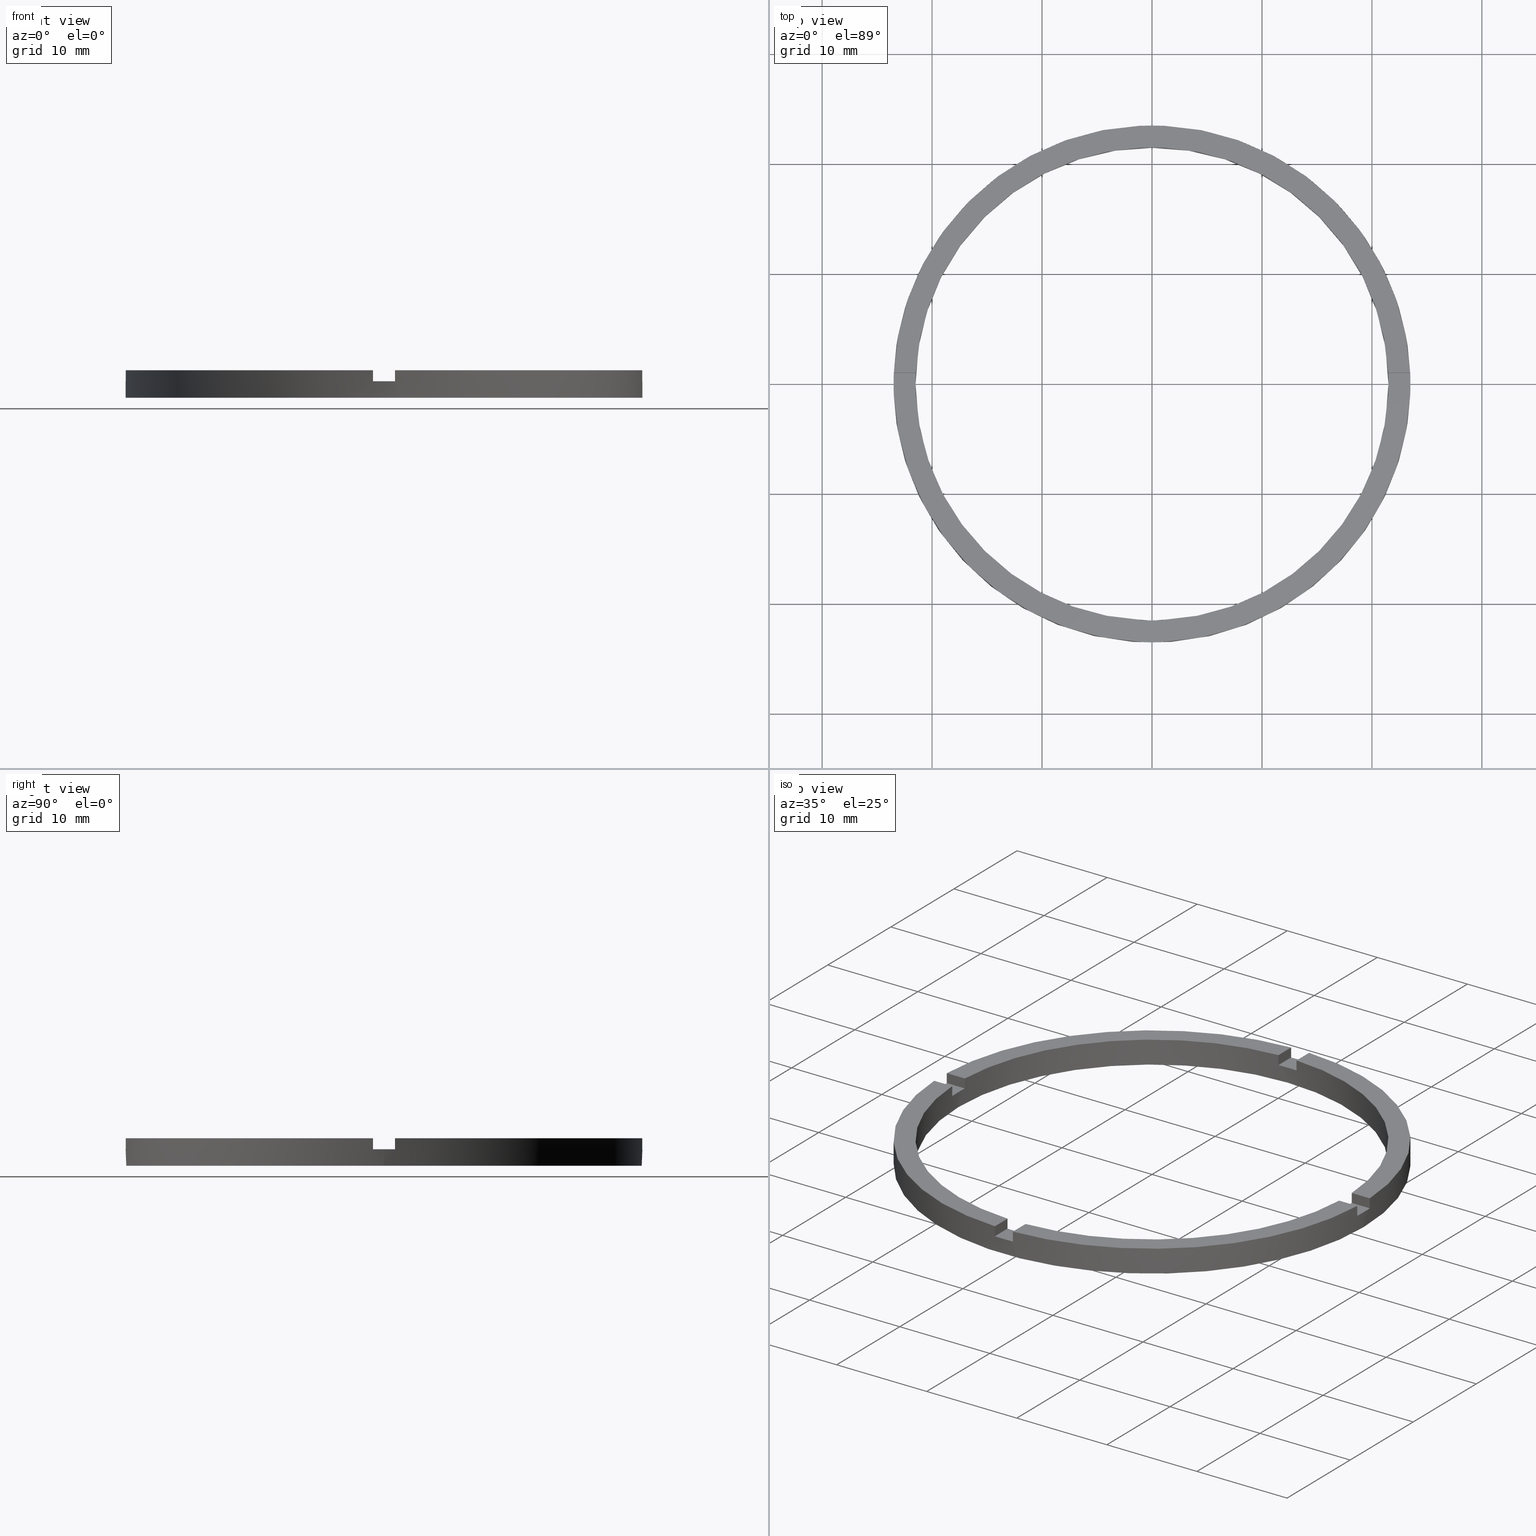
[diagram: canonical four-view strip — front | top / right | iso, engineering-drawing reading convention]
A machine part, canonical four-view strip (front | top / right | iso — engineering-drawing reading convention). The complete STEP part file that produces these views, byte-faithful:
ISO-10303-21;
HEADER;
FILE_DESCRIPTION (( 'STEP AP203' ),
    '1' );
FILE_NAME ('514098.step',
    '2024-12-26T02:37:19',
    ( 'MSI' ),
    ( '' ),
    'SwSTEP 2.0',
    'SolidWorks 2020',
    '' );
FILE_SCHEMA (( 'CONFIG_CONTROL_DESIGN' ));
ENDSEC;

DATA;
#1 = DIRECTION ( 'NONE',  ( 0.000000000000000000, 0.000000000000000000, 1.000000000000000000 ) ) ;
#2 = DIRECTION ( 'NONE',  ( -1.301042606982605074E-16, 1.000000000000000000, -0.000000000000000000 ) ) ;
#3 = DIRECTION ( 'NONE',  ( 1.000000000000000000, 0.000000000000000000, 0.000000000000000000 ) ) ;
#4 = CARTESIAN_POINT ( 'NONE',  ( 13.49999999999999822, -1.000000000000158318, 1.500000000000000000 ) ) ;
#5 = EDGE_CURVE ( 'NONE', #368, #486, #684, .T. ) ;
#6 = ORIENTED_EDGE ( 'NONE', *, *, #39, .F. ) ;
#7 = AXIS2_PLACEMENT_3D ( 'NONE', #4, #561, #611 ) ;
#8 = UNCERTAINTY_MEASURE_WITH_UNIT (LENGTH_MEASURE( 1.000000000000000082E-05 ), #657, 'distance_accuracy_value', 'NONE');
#9 = ORIENTED_EDGE ( 'NONE', *, *, #75, .F. ) ;
#10 = DIRECTION ( 'NONE',  ( 0.000000000000000000, 1.000000000000000000, 0.000000000000000000 ) ) ;
#11 = AXIS2_PLACEMENT_3D ( 'NONE', #760, #40, #524 ) ;
#12 = ORIENTED_EDGE ( 'NONE', *, *, #695, .F. ) ;
#13 = EDGE_CURVE ( 'NONE', #580, #300, #679, .T. ) ;
#14 = VERTEX_POINT ( 'NONE', #103 ) ;
#15 = ORIENTED_EDGE ( 'NONE', *, *, #314, .T. ) ;
#16 = PLANE ( 'NONE',  #222 ) ;
#17 = CC_DESIGN_PERSON_AND_ORGANIZATION_ASSIGNMENT ( #490, #618, ( #518 ) ) ;
#18 = EDGE_LOOP ( 'NONE', ( #203, #190, #292, #118 ) ) ;
#19 = ORIENTED_EDGE ( 'NONE', *, *, #650, .T. ) ;
#20 = ORIENTED_EDGE ( 'NONE', *, *, #438, .T. ) ;
#21 = DIRECTION ( 'NONE',  ( 0.000000000000000000, 0.000000000000000000, 1.000000000000000000 ) ) ;
#22 = DIRECTION ( 'NONE',  ( 0.000000000000000000, 0.000000000000000000, 1.000000000000000000 ) ) ;
#23 = EDGE_CURVE ( 'NONE', #247, #522, #391, .T. ) ;
#24 = VERTEX_POINT ( 'NONE', #392 ) ;
#25 = PLANE ( 'NONE',  #631 ) ;
#26 = ORIENTED_EDGE ( 'NONE', *, *, #13, .T. ) ;
#27 = AXIS2_PLACEMENT_3D ( 'NONE', #266, #626, #384 ) ;
#28 = CARTESIAN_POINT ( 'NONE',  ( 21.47673159491453632, 0.9999999999998419042, 2.500000000000000000 ) ) ;
#29 = CARTESIAN_POINT ( 'NONE',  ( -1.000000000000160982, -23.47871376374778407, 2.500000000000000000 ) ) ;
#30 = DIRECTION ( 'NONE',  ( 1.000000000000000000, 0.000000000000000000, 0.000000000000000000 ) ) ;
#31 = DIRECTION ( 'NONE',  ( 0.000000000000000000, 0.000000000000000000, 1.000000000000000000 ) ) ;
#32 = AXIS2_PLACEMENT_3D ( 'NONE', #646, #62, #603 ) ;
#33 = CARTESIAN_POINT ( 'NONE',  ( 23.47871376374779828, 0.9999999999998421263, 2.500000000000000000 ) ) ;
#34 = ORIENTED_EDGE ( 'NONE', *, *, #770, .T. ) ;
#35 = CARTESIAN_POINT ( 'NONE',  ( 0.000000000000000000, 0.000000000000000000, 1.500000000000000000 ) ) ;
#36 = DIRECTION ( 'NONE',  ( 1.000000000000000000, 0.000000000000000000, 0.000000000000000000 ) ) ;
#37 = ORIENTED_EDGE ( 'NONE', *, *, #550, .F. ) ;
#38 = ADVANCED_FACE ( 'NONE', ( #136 ), #605, .T. ) ;
#39 = EDGE_CURVE ( 'NONE', #57, #223, #169, .T. ) ;
#40 = DIRECTION ( 'NONE',  ( 0.000000000000000000, 0.000000000000000000, 1.000000000000000000 ) ) ;
#41 = CARTESIAN_POINT ( 'NONE',  ( 0.000000000000000000, 0.000000000000000000, 0.000000000000000000 ) ) ;
#42 = EDGE_CURVE ( 'NONE', #681, #522, #423, .T. ) ;
#43 = EDGE_CURVE ( 'NONE', #24, #531, #429, .T. ) ;
#44 = ORIENTED_EDGE ( 'NONE', *, *, #539, .F. ) ;
#45 = VERTEX_POINT ( 'NONE', #645 ) ;
#46 = EDGE_CURVE ( 'NONE', #522, #53, #698, .T. ) ;
#47 = ORIENTED_EDGE ( 'NONE', *, *, #92, .T. ) ;
#48 = ORIENTED_EDGE ( 'NONE', *, *, #70, .T. ) ;
#49 = VERTEX_POINT ( 'NONE', #99 ) ;
#50 = APPROVAL ( #412, 'δָ��' ) ;
#51 = EDGE_LOOP ( 'NONE', ( #156, #20, #693, #133, #273, #676, #160, #129, #424, #397, #413, #426 ) ) ;
#52 = CC_DESIGN_PERSON_AND_ORGANIZATION_ASSIGNMENT ( #758, #264, ( #594 ) ) ;
#53 = VERTEX_POINT ( 'NONE', #298 ) ;
#54 = DIRECTION ( 'NONE',  ( 0.000000000000000000, 0.000000000000000000, 1.000000000000000000 ) ) ;
#55 = CARTESIAN_POINT ( 'NONE',  ( -1.000000000000025535, 23.47871376374778762, 1.500000000000000000 ) ) ;
#56 = ORIENTED_EDGE ( 'NONE', *, *, #281, .F. ) ;
#57 = VERTEX_POINT ( 'NONE', #91 ) ;
#58 = AXIS2_PLACEMENT_3D ( 'NONE', #716, #376, #3 ) ;
#59 = VERTEX_POINT ( 'NONE', #309 ) ;
#60 = PLANE ( 'NONE',  #289 ) ;
#61 = CARTESIAN_POINT ( 'NONE',  ( 0.000000000000000000, 0.000000000000000000, 2.500000000000000000 ) ) ;
#62 = DIRECTION ( 'NONE',  ( 0.000000000000000000, 0.000000000000000000, 1.000000000000000000 ) ) ;
#63 = LINE ( 'NONE', #71, #593 ) ;
#64 = CARTESIAN_POINT ( 'NONE',  ( 0.9999999999999740208, 13.50000000000000355, 2.500000000000000000 ) ) ;
#65 = DIRECTION ( 'NONE',  ( 1.000000000000000000, 0.000000000000000000, -0.000000000000000000 ) ) ;
#66 = PRODUCT_DEFINITION_SHAPE ( 'NONE', 'NONE',  #341 ) ;
#67 = ORIENTED_EDGE ( 'NONE', *, *, #5, .T. ) ;
#68 = CARTESIAN_POINT ( 'NONE',  ( -23.47871376374779473, 0.9999999999999744649, 2.500000000000000000 ) ) ;
#69 = DIRECTION ( 'NONE',  ( 0.000000000000000000, 0.000000000000000000, 1.000000000000000000 ) ) ;
#70 = EDGE_CURVE ( 'NONE', #127, #218, #431, .T. ) ;
#71 = CARTESIAN_POINT ( 'NONE',  ( -1.000000000000162315, -13.50000000000018296, 2.500000000000000000 ) ) ;
#72 = ORIENTED_EDGE ( 'NONE', *, *, #337, .F. ) ;
#73 = DIRECTION ( 'NONE',  ( 1.000000000000000000, 0.000000000000000000, 0.000000000000000000 ) ) ;
#74 = EDGE_CURVE ( 'NONE', #560, #223, #701, .T. ) ;
#75 = EDGE_CURVE ( 'NONE', #681, #59, #176, .T. ) ;
#76 = CARTESIAN_POINT ( 'NONE',  ( -21.47673159491452921, 0.9999999999999749090, 2.500000000000000000 ) ) ;
#77 = CARTESIAN_POINT ( 'NONE',  ( -21.47673159491452566, -1.000000000000025091, 2.500000000000000000 ) ) ;
#78 = EDGE_CURVE ( 'NONE', #247, #408, #434, .T. ) ;
#79 = CARTESIAN_POINT ( 'NONE',  ( -1.000000000000025535, 23.47871376374778762, 2.500000000000000000 ) ) ;
#80 = CARTESIAN_POINT ( 'NONE',  ( 0.9999999999998386846, -23.47871376374779473, 2.500000000000000000 ) ) ;
#81 = AXIS2_PLACEMENT_3D ( 'NONE', #382, #54, #601 ) ;
#82 = CARTESIAN_POINT ( 'NONE',  ( 0.9999999999998389066, -21.47673159491453632, 2.500000000000000000 ) ) ;
#83 = EDGE_LOOP ( 'NONE', ( #171, #394 ) ) ;
#84 = CARTESIAN_POINT ( 'NONE',  ( 21.47673159491453632, 0.9999999999998419042, 1.500000000000000000 ) ) ;
#85 = VERTEX_POINT ( 'NONE', #602 ) ;
#86 = DIRECTION ( 'NONE',  ( 1.000000000000000000, 0.000000000000000000, 0.000000000000000000 ) ) ;
#87 = ADVANCED_FACE ( 'NONE', ( #667 ), #240, .F. ) ;
#88 = PRODUCT ( '514098', '514098', '', ( #248 ) ) ;
#89 = CARTESIAN_POINT ( 'NONE',  ( -1.000000000000160760, -21.47673159491451500, 2.500000000000000000 ) ) ;
#90 = EDGE_CURVE ( 'NONE', #535, #687, #671, .T. ) ;
#91 = CARTESIAN_POINT ( 'NONE',  ( -23.50000000000000355, 0.000000000000000000, 0.000000000000000000 ) ) ;
#92 = EDGE_CURVE ( 'NONE', #234, #580, #139, .T. ) ;
#93 = AXIS2_PLACEMENT_3D ( 'NONE', #250, #360, #36 ) ;
#94 = EDGE_CURVE ( 'NONE', #45, #548, #402, .T. ) ;
#95 = CARTESIAN_POINT ( 'NONE',  ( 23.50000000000000355, 2.877919977996280715E-15, 2.500000000000000000 ) ) ;
#96 = DIRECTION ( 'NONE',  ( 1.000000000000000000, 0.000000000000000000, 0.000000000000000000 ) ) ;
#97 = APPROVAL ( #473, 'δָ��' ) ;
#98 = CARTESIAN_POINT ( 'NONE',  ( 0.9999999999998391287, -23.47871376374779828, 2.500000000000000000 ) ) ;
#99 = CARTESIAN_POINT ( 'NONE',  ( 0.9999999999998384625, -21.47673159491453276, 2.500000000000000000 ) ) ;
#100 = DIRECTION ( 'NONE',  ( 1.000000000000000000, 0.000000000000000000, -0.000000000000000000 ) ) ;
#101 = DIRECTION ( 'NONE',  ( 1.000000000000000000, 4.336808689942017120E-17, 0.000000000000000000 ) ) ;
#102 =( NAMED_UNIT ( * ) PLANE_ANGLE_UNIT ( ) SI_UNIT ( $, .RADIAN. ) );
#103 = CARTESIAN_POINT ( 'NONE',  ( 21.47673159491452211, -1.000000000000158096, 2.500000000000000000 ) ) ;
#104 = DIRECTION ( 'NONE',  ( -4.336808689942017120E-17, 1.000000000000000000, 0.000000000000000000 ) ) ;
#105 = DIRECTION ( 'NONE',  ( 0.000000000000000000, 0.000000000000000000, 1.000000000000000000 ) ) ;
#106 = ORIENTED_EDGE ( 'NONE', *, *, #582, .F. ) ;
#107 = ORIENTED_EDGE ( 'NONE', *, *, #114, .T. ) ;
#108 = CARTESIAN_POINT ( 'NONE',  ( 13.49999999999999822, -1.000000000000158318, 1.500000000000000000 ) ) ;
#109 = DIRECTION ( 'NONE',  ( 1.000000000000000000, 0.000000000000000000, -0.000000000000000000 ) ) ;
#110 = DIRECTION ( 'NONE',  ( 0.000000000000000000, 0.000000000000000000, 1.000000000000000000 ) ) ;
#111 = CARTESIAN_POINT ( 'NONE',  ( -23.50000000000000355, 0.000000000000000000, 1.500000000000000000 ) ) ;
#112 = DIRECTION ( 'NONE',  ( 0.000000000000000000, 0.000000000000000000, 1.000000000000000000 ) ) ;
#113 = EDGE_CURVE ( 'NONE', #234, #537, #142, .T. ) ;
#114 = EDGE_CURVE ( 'NONE', #85, #408, #439, .T. ) ;
#115 = ORIENTED_EDGE ( 'NONE', *, *, #614, .T. ) ;
#116 = CARTESIAN_POINT ( 'NONE',  ( -13.50000000000018829, -1.000000000000023981, 1.500000000000000000 ) ) ;
#117 = PLANE ( 'NONE',  #400 ) ;
#118 = ORIENTED_EDGE ( 'NONE', *, *, #703, .F. ) ;
#119 = ADVANCED_FACE ( 'NONE', ( #465 ), #294, .T. ) ;
#120 = DIRECTION ( 'NONE',  ( -0.000000000000000000, -0.000000000000000000, -1.000000000000000000 ) ) ;
#121 = AXIS2_PLACEMENT_3D ( 'NONE', #417, #104, #577 ) ;
#122 =( GEOMETRIC_REPRESENTATION_CONTEXT ( 3 ) GLOBAL_UNCERTAINTY_ASSIGNED_CONTEXT ( ( #8 ) ) GLOBAL_UNIT_ASSIGNED_CONTEXT ( ( #657, #102, #166 ) ) REPRESENTATION_CONTEXT ( 'NONE', 'WORKASPACE' ) );
#123 = EDGE_LOOP ( 'NONE', ( #457, #48, #284, #44 ) ) ;
#124 = ORIENTED_EDGE ( 'NONE', *, *, #74, .F. ) ;
#125 = DIRECTION ( 'NONE',  ( 1.000000000000000000, 0.000000000000000000, -0.000000000000000000 ) ) ;
#126 = ORIENTED_EDGE ( 'NONE', *, *, #653, .F. ) ;
#127 = VERTEX_POINT ( 'NONE', #334 ) ;
#128 = ADVANCED_BREP_SHAPE_REPRESENTATION ( '514098', ( #556, #258 ), #122 ) ;
#129 = ORIENTED_EDGE ( 'NONE', *, *, #70, .F. ) ;
#130 = CARTESIAN_POINT ( 'NONE',  ( 0.000000000000000000, 0.000000000000000000, 2.500000000000000000 ) ) ;
#131 = CARTESIAN_POINT ( 'NONE',  ( -1.000000000000160538, -23.47871376374778052, 2.500000000000000000 ) ) ;
#132 = ADVANCED_FACE ( 'NONE', ( #472 ), #201, .F. ) ;
#133 = ORIENTED_EDGE ( 'NONE', *, *, #165, .F. ) ;
#134 = ORIENTED_EDGE ( 'NONE', *, *, #46, .F. ) ;
#135 = CARTESIAN_POINT ( 'NONE',  ( 21.47673159491452211, -1.000000000000158096, 2.500000000000000000 ) ) ;
#136 = FACE_OUTER_BOUND ( 'NONE', #144, .T. ) ;
#137 = CARTESIAN_POINT ( 'NONE',  ( 23.50000000000000355, 2.877919977996280715E-15, 0.000000000000000000 ) ) ;
#138 = ORIENTED_EDGE ( 'NONE', *, *, #438, .F. ) ;
#139 = LINE ( 'NONE', #708, #672 ) ;
#140 = VECTOR ( 'NONE', #2, 1000.000000000000000 ) ;
#141 = ORIENTED_EDGE ( 'NONE', *, *, #582, .T. ) ;
#142 = LINE ( 'NONE', #613, #409 ) ;
#143 = PLANE ( 'NONE',  #422 ) ;
#144 = EDGE_LOOP ( 'NONE', ( #12, #403, #658, #145 ) ) ;
#145 = ORIENTED_EDGE ( 'NONE', *, *, #204, .T. ) ;
#146 = ORIENTED_EDGE ( 'NONE', *, *, #606, .F. ) ;
#147 = EDGE_CURVE ( 'NONE', #705, #486, #189, .T. ) ;
#148 = ORIENTED_EDGE ( 'NONE', *, *, #74, .T. ) ;
#149 = DIRECTION ( 'NONE',  ( 1.000000000000000000, 0.000000000000000000, -0.000000000000000000 ) ) ;
#150 = ORIENTED_EDGE ( 'NONE', *, *, #23, .T. ) ;
#151 = ORIENTED_EDGE ( 'NONE', *, *, #395, .F. ) ;
#152 = AXIS2_PLACEMENT_3D ( 'NONE', #347, #654, #648 ) ;
#153 = ORIENTED_EDGE ( 'NONE', *, *, #627, .F. ) ;
#154 = ORIENTED_EDGE ( 'NONE', *, *, #75, .T. ) ;
#155 = VECTOR ( 'NONE', #551, 1000.000000000000000 ) ;
#156 = ORIENTED_EDGE ( 'NONE', *, *, #281, .T. ) ;
#157 = ORIENTED_EDGE ( 'NONE', *, *, #197, .T. ) ;
#158 = DIRECTION ( 'NONE',  ( 1.000000000000000000, 0.000000000000000000, 0.000000000000000000 ) ) ;
#159 = VERTEX_POINT ( 'NONE', #443 ) ;
#160 = ORIENTED_EDGE ( 'NONE', *, *, #335, .T. ) ;
#161 = CC_DESIGN_APPROVAL ( #97, ( #518 ) ) ;
#162 = ORIENTED_EDGE ( 'NONE', *, *, #440, .T. ) ;
#163 = DIRECTION ( 'NONE',  ( -1.000000000000000000, -1.734723475976806848E-16, 0.000000000000000000 ) ) ;
#164 = ORIENTED_EDGE ( 'NONE', *, *, #703, .T. ) ;
#165 = EDGE_CURVE ( 'NONE', #686, #533, #205, .T. ) ;
#166 =( NAMED_UNIT ( * ) SI_UNIT ( $, .STERADIAN. ) SOLID_ANGLE_UNIT ( ) );
#167 = VECTOR ( 'NONE', #515, 1000.000000000000000 ) ;
#168 = CARTESIAN_POINT ( 'NONE',  ( 0.000000000000000000, 0.000000000000000000, 0.000000000000000000 ) ) ;
#169 = CIRCLE ( 'NONE', #512, 23.50000000000000355 ) ;
#170 = AXIS2_PLACEMENT_3D ( 'NONE', #116, #393, #663 ) ;
#171 = ORIENTED_EDGE ( 'NONE', *, *, #342, .T. ) ;
#172 = VECTOR ( 'NONE', #10, 1000.000000000000000 ) ;
#173 = APPLICATION_CONTEXT ( 'configuration controlled 3d designs of mechanical parts and assemblies' ) ;
#174 = VECTOR ( 'NONE', #568, 1000.000000000000000 ) ;
#175 = CARTESIAN_POINT ( 'NONE',  ( 0.000000000000000000, 0.000000000000000000, 1.500000000000000000 ) ) ;
#176 = CIRCLE ( 'NONE', #152, 21.50000000000000000 ) ;
#177 = LINE ( 'NONE', #98, #739 ) ;
#178 = LINE ( 'NONE', #527, #436 ) ;
#179 = FACE_OUTER_BOUND ( 'NONE', #767, .T. ) ;
#180 = CARTESIAN_POINT ( 'NONE',  ( 0.000000000000000000, 0.000000000000000000, 0.000000000000000000 ) ) ;
#181 = CIRCLE ( 'NONE', #256, 21.50000000000000000 ) ;
#182 = FACE_OUTER_BOUND ( 'NONE', #755, .T. ) ;
#183 = LINE ( 'NONE', #628, #445 ) ;
#184 = DIRECTION ( 'NONE',  ( 1.000000000000000000, 1.734723475976806848E-16, -0.000000000000000000 ) ) ;
#185 = CIRCLE ( 'NONE', #523, 23.50000000000000355 ) ;
#186 = DIRECTION ( 'NONE',  ( -1.301042606982605074E-16, 1.000000000000000000, -0.000000000000000000 ) ) ;
#187 = LINE ( 'NONE', #545, #446 ) ;
#188 = DIRECTION ( 'NONE',  ( 1.000000000000000000, 0.000000000000000000, 0.000000000000000000 ) ) ;
#189 = LINE ( 'NONE', #480, #479 ) ;
#190 = ORIENTED_EDGE ( 'NONE', *, *, #78, .T. ) ;
#191 = LINE ( 'NONE', #344, #750 ) ;
#192 = APPROVAL_DATE_TIME ( #505, #50 ) ;
#193 = CIRCLE ( 'NONE', #617, 21.50000000000000000 ) ;
#194 = COORDINATED_UNIVERSAL_TIME_OFFSET ( 8, 0, .AHEAD. ) ;
#195 = CARTESIAN_POINT ( 'NONE',  ( 0.9999999999998377964, -13.50000000000018296, 2.500000000000000000 ) ) ;
#196 = LINE ( 'NONE', #316, #709 ) ;
#197 = EDGE_CURVE ( 'NONE', #555, #24, #177, .T. ) ;
#198 = APPROVAL_DATE_TIME ( #236, #97 ) ;
#199 = CIRCLE ( 'NONE', #93, 21.50000000000000000 ) ;
#200 = LOCAL_TIME ( 10, 37, 19.00000000000000000, #471 ) ;
#201 = CYLINDRICAL_SURFACE ( 'NONE', #245, 21.50000000000000000 ) ;
#202 = LINE ( 'NONE', #230, #744 ) ;
#203 = ORIENTED_EDGE ( 'NONE', *, *, #363, .T. ) ;
#204 = EDGE_CURVE ( 'NONE', #234, #416, #442, .T. ) ;
#205 = LINE ( 'NONE', #783, #728 ) ;
#206 = CIRCLE ( 'NONE', #608, 21.50000000000000000 ) ;
#207 = CARTESIAN_POINT ( 'NONE',  ( 0.000000000000000000, 0.000000000000000000, 2.500000000000000000 ) ) ;
#208 = LOCAL_TIME ( 10, 37, 19.00000000000000000, #745 ) ;
#209 = CIRCLE ( 'NONE', #718, 21.50000000000000000 ) ;
#210 = FACE_OUTER_BOUND ( 'NONE', #571, .T. ) ;
#211 = DIRECTION ( 'NONE',  ( 1.000000000000000000, -0.000000000000000000, 0.000000000000000000 ) ) ;
#212 = VECTOR ( 'NONE', #322, 1000.000000000000000 ) ;
#213 = CC_DESIGN_PERSON_AND_ORGANIZATION_ASSIGNMENT ( #217, #615, ( #341 ) ) ;
#214 = FACE_OUTER_BOUND ( 'NONE', #293, .T. ) ;
#215 = VERTEX_POINT ( 'NONE', #285 ) ;
#216 = CIRCLE ( 'NONE', #351, 21.50000000000000000 ) ;
#217 = PERSON_AND_ORGANIZATION ( #336, #232 ) ;
#218 = VERTEX_POINT ( 'NONE', #89 ) ;
#219 = CIRCLE ( 'NONE', #641, 23.50000000000000355 ) ;
#220 = APPROVAL_DATE_TIME ( #749, #261 ) ;
#221 = LINE ( 'NONE', #353, #774 ) ;
#222 = AXIS2_PLACEMENT_3D ( 'NONE', #241, #607, #69 ) ;
#223 = VERTEX_POINT ( 'NONE', #137 ) ;
#224 = VECTOR ( 'NONE', #186, 1000.000000000000000 ) ;
#225 = CARTESIAN_POINT ( 'NONE',  ( 0.9999999999999735767, 21.47673159491452566, 2.500000000000000000 ) ) ;
#226 = ADVANCED_FACE ( 'NONE', ( #179 ), #231, .T. ) ;
#227 = ORIENTED_EDGE ( 'NONE', *, *, #113, .F. ) ;
#228 = LINE ( 'NONE', #29, #773 ) ;
#229 = ORIENTED_EDGE ( 'NONE', *, *, #165, .T. ) ;
#230 = CARTESIAN_POINT ( 'NONE',  ( 13.49999999999999822, 0.9999999999998416822, 2.500000000000000000 ) ) ;
#231 = PLANE ( 'NONE',  #32 ) ;
#232 = ORGANIZATION ( 'δָ��', 'δָ��', '' ) ;
#233 = FACE_OUTER_BOUND ( 'NONE', #18, .T. ) ;
#234 = VERTEX_POINT ( 'NONE', #288 ) ;
#235 = FACE_BOUND ( 'NONE', #83, .T. ) ;
#236 = DATE_AND_TIME ( #455, #769 ) ;
#237 = LINE ( 'NONE', #362, #765 ) ;
#238 = PERSON_AND_ORGANIZATION ( #336, #232 ) ;
#239 = LINE ( 'NONE', #195, #224 ) ;
#240 = PLANE ( 'NONE',  #7 ) ;
#241 = CARTESIAN_POINT ( 'NONE',  ( -1.000000000000025979, 13.50000000000000355, 1.500000000000000000 ) ) ;
#242 = DIRECTION ( 'NONE',  ( 1.000000000000000000, 0.000000000000000000, 0.000000000000000000 ) ) ;
#243 = PLANE ( 'NONE',  #317 ) ;
#244 = DIRECTION ( 'NONE',  ( -1.000000000000000000, 0.000000000000000000, 0.000000000000000000 ) ) ;
#245 = AXIS2_PLACEMENT_3D ( 'NONE', #449, #461, #549 ) ;
#246 = DIRECTION ( 'NONE',  ( 1.000000000000000000, 1.734723475976806848E-16, -0.000000000000000000 ) ) ;
#247 = VERTEX_POINT ( 'NONE', #704 ) ;
#248 = MECHANICAL_CONTEXT ( 'NONE', #173, 'mechanical' ) ;
#249 = DIRECTION ( 'NONE',  ( -0.000000000000000000, -0.000000000000000000, -1.000000000000000000 ) ) ;
#250 = CARTESIAN_POINT ( 'NONE',  ( 0.000000000000000000, 0.000000000000000000, 2.500000000000000000 ) ) ;
#251 = ORIENTED_EDGE ( 'NONE', *, *, #494, .T. ) ;
#252 = EDGE_CURVE ( 'NONE', #705, #548, #444, .T. ) ;
#253 = PERSON_AND_ORGANIZATION_ROLE ( 'creator' ) ;
#254 = CARTESIAN_POINT ( 'NONE',  ( 0.000000000000000000, 0.000000000000000000, 2.500000000000000000 ) ) ;
#255 = AXIS2_PLACEMENT_3D ( 'NONE', #619, #576, #30 ) ;
#256 = AXIS2_PLACEMENT_3D ( 'NONE', #41, #418, #642 ) ;
#257 = ORIENTED_EDGE ( 'NONE', *, *, #630, .T. ) ;
#258 = AXIS2_PLACEMENT_3D ( 'NONE', #495, #570, #73 ) ;
#259 = CARTESIAN_POINT ( 'NONE',  ( 0.000000000000000000, 0.000000000000000000, 2.500000000000000000 ) ) ;
#260 = CARTESIAN_POINT ( 'NONE',  ( -1.000000000000160538, -23.47871376374778052, 1.500000000000000000 ) ) ;
#261 = APPROVAL ( #738, 'δָ��' ) ;
#262 = ORIENTED_EDGE ( 'NONE', *, *, #606, .T. ) ;
#263 = ORIENTED_EDGE ( 'NONE', *, *, #147, .F. ) ;
#264 = PERSON_AND_ORGANIZATION_ROLE ( 'design_supplier' ) ;
#265 = ORIENTED_EDGE ( 'NONE', *, *, #5, .F. ) ;
#266 = CARTESIAN_POINT ( 'NONE',  ( 0.000000000000000000, 0.000000000000000000, 1.500000000000000000 ) ) ;
#267 = AXIS2_PLACEMENT_3D ( 'NONE', #458, #547, #125 ) ;
#268 = CLOSED_SHELL ( 'NONE', ( #132, #589, #226, #778, #271, #38, #534, #370, #279, #525, #519, #597, #359, #331, #635, #528, #87, #366, #433, #441, #119 ) ) ;
#269 = ORIENTED_EDGE ( 'NONE', *, *, #770, .F. ) ;
#270 = CARTESIAN_POINT ( 'NONE',  ( 0.9999999999999740208, 13.50000000000000355, 1.500000000000000000 ) ) ;
#271 = ADVANCED_FACE ( 'NONE', ( #210 ), #143, .T. ) ;
#272 = EDGE_LOOP ( 'NONE', ( #291, #559, #275, #541 ) ) ;
#273 = ORIENTED_EDGE ( 'NONE', *, *, #339, .T. ) ;
#274 = ORIENTED_EDGE ( 'NONE', *, *, #453, .T. ) ;
#275 = ORIENTED_EDGE ( 'NONE', *, *, #94, .T. ) ;
#276 = CARTESIAN_POINT ( 'NONE',  ( 0.000000000000000000, 0.000000000000000000, 1.500000000000000000 ) ) ;
#277 = EDGE_LOOP ( 'NONE', ( #6, #146 ) ) ;
#278 = DIRECTION ( 'NONE',  ( -1.000000000000000000, 0.000000000000000000, 0.000000000000000000 ) ) ;
#279 = ADVANCED_FACE ( 'NONE', ( #469 ), #742, .F. ) ;
#280 = EDGE_CURVE ( 'NONE', #625, #548, #454, .T. ) ;
#281 = EDGE_CURVE ( 'NONE', #535, #585, #467, .T. ) ;
#282 = VERTEX_POINT ( 'NONE', #311 ) ;
#283 = AXIS2_PLACEMENT_3D ( 'NONE', #733, #622, #569 ) ;
#284 = ORIENTED_EDGE ( 'NONE', *, *, #695, .T. ) ;
#285 = CARTESIAN_POINT ( 'NONE',  ( -21.47673159491452921, 0.9999999999999749090, 1.500000000000000000 ) ) ;
#286 = CARTESIAN_POINT ( 'NONE',  ( -21.50000000000000000, 0.000000000000000000, 0.000000000000000000 ) ) ;
#287 = EDGE_CURVE ( 'NONE', #705, #673, #435, .T. ) ;
#288 = CARTESIAN_POINT ( 'NONE',  ( -23.47871376374779118, -1.000000000000025535, 2.500000000000000000 ) ) ;
#289 = AXIS2_PLACEMENT_3D ( 'NONE', #180, #299, #100 ) ;
#290 = CARTESIAN_POINT ( 'NONE',  ( -1.000000000000161204, -21.47673159491451855, 2.500000000000000000 ) ) ;
#291 = ORIENTED_EDGE ( 'NONE', *, *, #324, .F. ) ;
#292 = ORIENTED_EDGE ( 'NONE', *, *, #114, .F. ) ;
#293 = EDGE_LOOP ( 'NONE', ( #72, #587, #526, #346 ) ) ;
#294 = PLANE ( 'NONE',  #751 ) ;
#295 = DIRECTION ( 'NONE',  ( 1.301042606982605074E-16, -1.000000000000000000, 0.000000000000000000 ) ) ;
#296 = AXIS2_PLACEMENT_3D ( 'NONE', #447, #702, #86 ) ;
#297 = ORIENTED_EDGE ( 'NONE', *, *, #766, .T. ) ;
#298 = CARTESIAN_POINT ( 'NONE',  ( 0.9999999999999735767, 23.47871376374779118, 2.500000000000000000 ) ) ;
#299 = DIRECTION ( 'NONE',  ( 0.000000000000000000, 0.000000000000000000, 1.000000000000000000 ) ) ;
#300 = VERTEX_POINT ( 'NONE', #387 ) ;
#301 = ORIENTED_EDGE ( 'NONE', *, *, #650, .F. ) ;
#302 = DIRECTION ( 'NONE',  ( -0.000000000000000000, -0.000000000000000000, -1.000000000000000000 ) ) ;
#303 = ORIENTED_EDGE ( 'NONE', *, *, #552, .T. ) ;
#304 = APPROVAL_ROLE ( '' ) ;
#305 = DIRECTION ( 'NONE',  ( 0.000000000000000000, 0.000000000000000000, 1.000000000000000000 ) ) ;
#306 = PLANE ( 'NONE',  #170 ) ;
#307 = ORIENTED_EDGE ( 'NONE', *, *, #656, .F. ) ;
#308 = APPROVAL_ROLE ( '' ) ;
#309 = CARTESIAN_POINT ( 'NONE',  ( -1.000000000000025535, 21.47673159491452211, 1.500000000000000000 ) ) ;
#310 = PLANE ( 'NONE',  #121 ) ;
#311 = CARTESIAN_POINT ( 'NONE',  ( 21.50000000000000000, 2.632990618166809235E-15, 0.000000000000000000 ) ) ;
#312 = VECTOR ( 'NONE', #554, 1000.000000000000000 ) ;
#313 = PERSON_AND_ORGANIZATION_ROLE ( 'design_owner' ) ;
#314 = EDGE_CURVE ( 'NONE', #585, #408, #727, .T. ) ;
#315 = CARTESIAN_POINT ( 'NONE',  ( 23.50000000000000355, 2.877919977996280715E-15, 1.500000000000000000 ) ) ;
#316 = CARTESIAN_POINT ( 'NONE',  ( -13.50000000000018829, 0.9999999999999761302, 1.500000000000000000 ) ) ;
#317 = AXIS2_PLACEMENT_3D ( 'NONE', #175, #500, #109 ) ;
#318 = DATE_TIME_ROLE ( 'classification_date' ) ;
#319 = EDGE_CURVE ( 'NONE', #127, #531, #193, .T. ) ;
#320 = DIRECTION ( 'NONE',  ( 1.000000000000000000, 0.000000000000000000, 0.000000000000000000 ) ) ;
#321 = CC_DESIGN_DATE_AND_TIME_ASSIGNMENT ( #736, #652, ( #341 ) ) ;
#322 = DIRECTION ( 'NONE',  ( 0.000000000000000000, 1.000000000000000000, 0.000000000000000000 ) ) ;
#323 = LINE ( 'NONE', #33, #581 ) ;
#324 = EDGE_CURVE ( 'NONE', #215, #625, #196, .T. ) ;
#325 = DIRECTION ( 'NONE',  ( 1.000000000000000000, 0.000000000000000000, 0.000000000000000000 ) ) ;
#326 = AXIS2_PLACEMENT_3D ( 'NONE', #752, #373, #649 ) ;
#327 = AXIS2_PLACEMENT_3D ( 'NONE', #430, #520, #325 ) ;
#328 = ORIENTED_EDGE ( 'NONE', *, *, #653, .T. ) ;
#329 = DIRECTION ( 'NONE',  ( 1.000000000000000000, 0.000000000000000000, -0.000000000000000000 ) ) ;
#330 = DIRECTION ( 'NONE',  ( 0.000000000000000000, 0.000000000000000000, -1.000000000000000000 ) ) ;
#331 = ADVANCED_FACE ( 'NONE', ( #448 ), #117, .F. ) ;
#332 = DIRECTION ( 'NONE',  ( -0.000000000000000000, -0.000000000000000000, -1.000000000000000000 ) ) ;
#333 = CARTESIAN_POINT ( 'NONE',  ( -23.47871376374779118, -1.000000000000025535, 1.500000000000000000 ) ) ;
#334 = CARTESIAN_POINT ( 'NONE',  ( -1.000000000000160760, -21.47673159491451500, 1.500000000000000000 ) ) ;
#335 = EDGE_CURVE ( 'NONE', #580, #218, #199, .T. ) ;
#336 = PERSON ( 'δָ��', 'δָ��', 'δָ��', ('δָ��'), ('δָ��'), ('δָ��') ) ;
#337 = EDGE_CURVE ( 'NONE', #681, #368, #437, .T. ) ;
#338 = DIRECTION ( 'NONE',  ( 0.000000000000000000, -0.000000000000000000, 1.000000000000000000 ) ) ;
#339 = EDGE_CURVE ( 'NONE', #686, #300, #721, .T. ) ;
#340 = DIRECTION ( 'NONE',  ( 0.000000000000000000, 0.000000000000000000, 1.000000000000000000 ) ) ;
#341 = PRODUCT_DEFINITION ( 'δ֪', '', #594, #610 ) ;
#342 = EDGE_CURVE ( 'NONE', #533, #282, #181, .T. ) ;
#343 = DIRECTION ( 'NONE',  ( -0.000000000000000000, -0.000000000000000000, -1.000000000000000000 ) ) ;
#344 = CARTESIAN_POINT ( 'NONE',  ( -1.000000000000162315, -13.50000000000018296, 1.500000000000000000 ) ) ;
#345 = CC_DESIGN_APPROVAL ( #261, ( #594 ) ) ;
#346 = ORIENTED_EDGE ( 'NONE', *, *, #521, .F. ) ;
#347 = CARTESIAN_POINT ( 'NONE',  ( 0.000000000000000000, 0.000000000000000000, 1.500000000000000000 ) ) ;
#348 = PLANE ( 'NONE',  #326 ) ;
#349 = CARTESIAN_POINT ( 'NONE',  ( 21.50000000000000000, 2.632990618166809235E-15, 2.500000000000000000 ) ) ;
#350 = DIRECTION ( 'NONE',  ( -0.000000000000000000, -0.000000000000000000, -1.000000000000000000 ) ) ;
#351 = AXIS2_PLACEMENT_3D ( 'NONE', #168, #612, #158 ) ;
#352 = DIRECTION ( 'NONE',  ( 1.000000000000000000, 0.000000000000000000, 0.000000000000000000 ) ) ;
#353 = CARTESIAN_POINT ( 'NONE',  ( 23.47871376374778407, -1.000000000000157874, 2.500000000000000000 ) ) ;
#354 = CARTESIAN_POINT ( 'NONE',  ( -1.000000000000025979, 13.50000000000000355, 2.500000000000000000 ) ) ;
#355 = APPLICATION_CONTEXT ( 'configuration controlled 3d designs of mechanical parts and assemblies' ) ;
#356 = CARTESIAN_POINT ( 'NONE',  ( 21.50000000000000000, 2.632990618166809235E-15, 1.500000000000000000 ) ) ;
#357 = EDGE_CURVE ( 'NONE', #535, #14, #460, .T. ) ;
#358 = PLANE ( 'NONE',  #327 ) ;
#359 = ADVANCED_FACE ( 'NONE', ( #463 ), #782, .F. ) ;
#360 = DIRECTION ( 'NONE',  ( 0.000000000000000000, 0.000000000000000000, 1.000000000000000000 ) ) ;
#361 = EDGE_CURVE ( 'NONE', #668, #53, #735, .T. ) ;
#362 = CARTESIAN_POINT ( 'NONE',  ( -1.000000000000025979, 21.47673159491452566, 2.500000000000000000 ) ) ;
#363 = EDGE_CURVE ( 'NONE', #668, #247, #202, .T. ) ;
#364 = CARTESIAN_POINT ( 'NONE',  ( 0.9999999999999735767, 23.47871376374779118, 1.500000000000000000 ) ) ;
#365 = ORIENTED_EDGE ( 'NONE', *, *, #319, .F. ) ;
#366 = ADVANCED_FACE ( 'NONE', ( #707 ), #374, .T. ) ;
#367 = PRODUCT_RELATED_PRODUCT_CATEGORY ( 'detail', '', ( #88 ) ) ;
#368 = VERTEX_POINT ( 'NONE', #364 ) ;
#369 = DIRECTION ( 'NONE',  ( 0.000000000000000000, 0.000000000000000000, 1.000000000000000000 ) ) ;
#370 = ADVANCED_FACE ( 'NONE', ( #182 ), #713, .T. ) ;
#371 = AXIS2_PLACEMENT_3D ( 'NONE', #734, #112, #380 ) ;
#372 = CARTESIAN_POINT ( 'NONE',  ( 0.000000000000000000, 0.000000000000000000, 1.500000000000000000 ) ) ;
#373 = DIRECTION ( 'NONE',  ( -1.734723475976806848E-16, 1.000000000000000000, 0.000000000000000000 ) ) ;
#374 = PLANE ( 'NONE',  #267 ) ;
#375 = ORIENTED_EDGE ( 'NONE', *, *, #252, .F. ) ;
#376 = DIRECTION ( 'NONE',  ( 0.000000000000000000, 0.000000000000000000, 1.000000000000000000 ) ) ;
#377 = ORIENTED_EDGE ( 'NONE', *, *, #361, .F. ) ;
#378 = APPLICATION_PROTOCOL_DEFINITION ( 'international standard', 'config_control_design', 1994, #355 ) ;
#379 = ORIENTED_EDGE ( 'NONE', *, *, #39, .T. ) ;
#380 = DIRECTION ( 'NONE',  ( 1.000000000000000000, 0.000000000000000000, 0.000000000000000000 ) ) ;
#381 = EDGE_CURVE ( 'NONE', #215, #686, #209, .T. ) ;
#382 = CARTESIAN_POINT ( 'NONE',  ( 0.000000000000000000, 0.000000000000000000, 2.500000000000000000 ) ) ;
#383 = AXIS2_PLACEMENT_3D ( 'NONE', #61, #722, #149 ) ;
#384 = DIRECTION ( 'NONE',  ( 1.000000000000000000, 0.000000000000000000, 0.000000000000000000 ) ) ;
#385 = DIRECTION ( 'NONE',  ( -0.000000000000000000, -0.000000000000000000, -1.000000000000000000 ) ) ;
#386 = DIRECTION ( 'NONE',  ( 1.000000000000000000, 0.000000000000000000, 0.000000000000000000 ) ) ;
#387 = CARTESIAN_POINT ( 'NONE',  ( -21.47673159491452566, -1.000000000000025091, 1.500000000000000000 ) ) ;
#388 = CARTESIAN_POINT ( 'NONE',  ( 13.49999999999999822, 0.9999999999998416822, 1.500000000000000000 ) ) ;
#389 = ORIENTED_EDGE ( 'NONE', *, *, #113, .T. ) ;
#390 = EDGE_LOOP ( 'NONE', ( #415, #148, #262, #706, #420, #530, #375, #682, #265, #427, #377, #164 ) ) ;
#391 = CIRCLE ( 'NONE', #588, 21.50000000000000000 ) ;
#392 = CARTESIAN_POINT ( 'NONE',  ( 0.9999999999998386846, -23.47871376374779473, 1.500000000000000000 ) ) ;
#393 = DIRECTION ( 'NONE',  ( 1.734723475976806848E-16, -1.000000000000000000, 0.000000000000000000 ) ) ;
#394 = ORIENTED_EDGE ( 'NONE', *, *, #550, .T. ) ;
#395 = EDGE_CURVE ( 'NONE', #49, #14, #715, .T. ) ;
#396 = VECTOR ( 'NONE', #21, 1000.000000000000000 ) ;
#397 = ORIENTED_EDGE ( 'NONE', *, *, #630, .F. ) ;
#398 = VECTOR ( 'NONE', #385, 1000.000000000000000 ) ;
#399 = ORIENTED_EDGE ( 'NONE', *, *, #314, .F. ) ;
#400 = AXIS2_PLACEMENT_3D ( 'NONE', #666, #578, #753 ) ;
#401 = CARTESIAN_POINT ( 'NONE',  ( 0.000000000000000000, 0.000000000000000000, 2.500000000000000000 ) ) ;
#402 = LINE ( 'NONE', #565, #674 ) ;
#403 = ORIENTED_EDGE ( 'NONE', *, *, #335, .F. ) ;
#404 = AXIS2_PLACEMENT_3D ( 'NONE', #276, #664, #320 ) ;
#405 = ORIENTED_EDGE ( 'NONE', *, *, #94, .F. ) ;
#406 = CARTESIAN_POINT ( 'NONE',  ( -23.50000000000000355, 0.000000000000000000, 2.500000000000000000 ) ) ;
#407 = DIRECTION ( 'NONE',  ( 0.000000000000000000, 0.000000000000000000, 1.000000000000000000 ) ) ;
#408 = VERTEX_POINT ( 'NONE', #84 ) ;
#409 = VECTOR ( 'NONE', #651, 1000.000000000000000 ) ;
#410 = ORIENTED_EDGE ( 'NONE', *, *, #90, .T. ) ;
#411 = CC_DESIGN_DATE_AND_TIME_ASSIGNMENT ( #762, #318, ( #518 ) ) ;
#412 = APPROVAL_STATUS ( 'not_yet_approved' ) ;
#413 = ORIENTED_EDGE ( 'NONE', *, *, #395, .T. ) ;
#414 = ORIENTED_EDGE ( 'NONE', *, *, #511, .F. ) ;
#415 = ORIENTED_EDGE ( 'NONE', *, *, #614, .F. ) ;
#416 = VERTEX_POINT ( 'NONE', #131 ) ;
#417 = CARTESIAN_POINT ( 'NONE',  ( 13.49999999999999822, 0.9999999999998416822, 1.500000000000000000 ) ) ;
#418 = DIRECTION ( 'NONE',  ( 0.000000000000000000, 0.000000000000000000, 1.000000000000000000 ) ) ;
#419 = ORIENTED_EDGE ( 'NONE', *, *, #627, .T. ) ;
#420 = ORIENTED_EDGE ( 'NONE', *, *, #453, .F. ) ;
#421 = ORIENTED_EDGE ( 'NONE', *, *, #639, .F. ) ;
#422 = AXIS2_PLACEMENT_3D ( 'NONE', #130, #553, #329 ) ;
#423 = LINE ( 'NONE', #700, #396 ) ;
#424 = ORIENTED_EDGE ( 'NONE', *, *, #319, .T. ) ;
#425 = ORIENTED_EDGE ( 'NONE', *, *, #511, .T. ) ;
#426 = ORIENTED_EDGE ( 'NONE', *, *, #357, .F. ) ;
#427 = ORIENTED_EDGE ( 'NONE', *, *, #521, .T. ) ;
#428 = ORIENTED_EDGE ( 'NONE', *, *, #357, .T. ) ;
#429 = LINE ( 'NONE', #714, #140 ) ;
#430 = CARTESIAN_POINT ( 'NONE',  ( 0.000000000000000000, 0.000000000000000000, 1.500000000000000000 ) ) ;
#431 = LINE ( 'NONE', #290, #155 ) ;
#432 = ORIENTED_EDGE ( 'NONE', *, *, #78, .F. ) ;
#433 = ADVANCED_FACE ( 'NONE', ( #475 ), #16, .F. ) ;
#434 = LINE ( 'NONE', #28, #398 ) ;
#435 = LINE ( 'NONE', #354, #451 ) ;
#436 = VECTOR ( 'NONE', #591, 1000.000000000000000 ) ;
#437 = LINE ( 'NONE', #270, #212 ) ;
#438 = EDGE_CURVE ( 'NONE', #585, #282, #477, .T. ) ;
#439 = LINE ( 'NONE', #388, #724 ) ;
#440 = EDGE_CURVE ( 'NONE', #127, #546, #191, .T. ) ;
#441 = ADVANCED_FACE ( 'NONE', ( #214 ), #482, .F. ) ;
#442 = CIRCLE ( 'NONE', #81, 23.50000000000000355 ) ;
#443 = CARTESIAN_POINT ( 'NONE',  ( 23.47871376374778407, -1.000000000000157874, 2.500000000000000000 ) ) ;
#444 = CIRCLE ( 'NONE', #58, 23.50000000000000355 ) ;
#445 = VECTOR ( 'NONE', #101, 1000.000000000000000 ) ;
#446 = VECTOR ( 'NONE', #31, 1000.000000000000000 ) ;
#447 = CARTESIAN_POINT ( 'NONE',  ( 0.000000000000000000, 0.000000000000000000, 2.500000000000000000 ) ) ;
#448 = FACE_OUTER_BOUND ( 'NONE', #123, .T. ) ;
#449 = CARTESIAN_POINT ( 'NONE',  ( 0.000000000000000000, 0.000000000000000000, 2.500000000000000000 ) ) ;
#450 = LOCAL_TIME ( 10, 37, 19.00000000000000000, #452 ) ;
#451 = VECTOR ( 'NONE', #510, 1000.000000000000000 ) ;
#452 = COORDINATED_UNIVERSAL_TIME_OFFSET ( 8, 0, .AHEAD. ) ;
#453 = EDGE_CURVE ( 'NONE', #625, #543, #185, .T. ) ;
#454 = LINE ( 'NONE', #68, #710 ) ;
#455 = CALENDAR_DATE ( 2024, 26, 12 ) ;
#456 = DIRECTION ( 'NONE',  ( 1.000000000000000000, 4.336808689942017120E-17, 0.000000000000000000 ) ) ;
#457 = ORIENTED_EDGE ( 'NONE', *, *, #440, .F. ) ;
#458 = CARTESIAN_POINT ( 'NONE',  ( 0.000000000000000000, 0.000000000000000000, 1.500000000000000000 ) ) ;
#459 = AXIS2_PLACEMENT_3D ( 'NONE', #563, #407, #573 ) ;
#460 = LINE ( 'NONE', #135, #731 ) ;
#461 = DIRECTION ( 'NONE',  ( -0.000000000000000000, -0.000000000000000000, -1.000000000000000000 ) ) ;
#462 = AXIS2_PLACEMENT_3D ( 'NONE', #35, #562, #386 ) ;
#463 = FACE_OUTER_BOUND ( 'NONE', #697, .T. ) ;
#464 = EDGE_LOOP ( 'NONE', ( #47, #26, #754, #227 ) ) ;
#465 = FACE_OUTER_BOUND ( 'NONE', #501, .T. ) ;
#466 = COORDINATED_UNIVERSAL_TIME_OFFSET ( 8, 0, .AHEAD. ) ;
#467 = CIRCLE ( 'NONE', #371, 21.50000000000000000 ) ;
#468 = PERSON_AND_ORGANIZATION ( #336, #232 ) ;
#469 = FACE_OUTER_BOUND ( 'NONE', #538, .T. ) ;
#470 = DIRECTION ( 'NONE',  ( -0.000000000000000000, -0.000000000000000000, -1.000000000000000000 ) ) ;
#471 = COORDINATED_UNIVERSAL_TIME_OFFSET ( 8, 0, .AHEAD. ) ;
#472 = FACE_OUTER_BOUND ( 'NONE', #51, .T. ) ;
#473 = APPROVAL_STATUS ( 'not_yet_approved' ) ;
#474 = CALENDAR_DATE ( 2024, 26, 12 ) ;
#475 = FACE_OUTER_BOUND ( 'NONE', #558, .T. ) ;
#476 = PERSON_AND_ORGANIZATION ( #336, #232 ) ;
#477 = LINE ( 'NONE', #349, #747 ) ;
#478 = AXIS2_PLACEMENT_3D ( 'NONE', #600, #596, #694 ) ;
#479 = VECTOR ( 'NONE', #598, 1000.000000000000000 ) ;
#480 = CARTESIAN_POINT ( 'NONE',  ( -1.000000000000025979, 23.47871376374779118, 2.500000000000000000 ) ) ;
#481 = VECTOR ( 'NONE', #184, 1000.000000000000000 ) ;
#482 = PLANE ( 'NONE',  #665 ) ;
#483 = LINE ( 'NONE', #82, #759 ) ;
#484 = CARTESIAN_POINT ( 'NONE',  ( 0.9999999999999735767, 21.47673159491452566, 1.500000000000000000 ) ) ;
#485 = CALENDAR_DATE ( 2024, 26, 12 ) ;
#486 = VERTEX_POINT ( 'NONE', #55 ) ;
#487 = VECTOR ( 'NONE', #249, 1000.000000000000000 ) ;
#488 = PERSON_AND_ORGANIZATION ( #336, #232 ) ;
#489 = CIRCLE ( 'NONE', #11, 23.50000000000000355 ) ;
#490 = PERSON_AND_ORGANIZATION ( #336, #232 ) ;
#491 = FACE_OUTER_BOUND ( 'NONE', #277, .T. ) ;
#492 = CALENDAR_DATE ( 2024, 26, 12 ) ;
#493 = CYLINDRICAL_SURFACE ( 'NONE', #283, 23.50000000000000355 ) ;
#494 = EDGE_CURVE ( 'NONE', #486, #59, #178, .T. ) ;
#495 = CARTESIAN_POINT ( 'NONE',  ( 0.000000000000000000, 0.000000000000000000, 0.000000000000000000 ) ) ;
#496 = CIRCLE ( 'NONE', #566, 23.50000000000000355 ) ;
#497 = ORIENTED_EDGE ( 'NONE', *, *, #381, .T. ) ;
#498 = LOCAL_TIME ( 10, 37, 19.00000000000000000, #466 ) ;
#499 = LINE ( 'NONE', #406, #487 ) ;
#500 = DIRECTION ( 'NONE',  ( 0.000000000000000000, 0.000000000000000000, 1.000000000000000000 ) ) ;
#501 = EDGE_LOOP ( 'NONE', ( #67, #251, #9, #595 ) ) ;
#502 = APPROVAL_PERSON_ORGANIZATION ( #488, #261, #567 ) ;
#503 = CIRCLE ( 'NONE', #404, 23.50000000000000355 ) ;
#504 = ORIENTED_EDGE ( 'NONE', *, *, #381, .F. ) ;
#505 = DATE_AND_TIME ( #474, #498 ) ;
#506 = CIRCLE ( 'NONE', #27, 23.50000000000000355 ) ;
#507 = CALENDAR_DATE ( 2024, 26, 12 ) ;
#508 = LINE ( 'NONE', #76, #312 ) ;
#509 = CARTESIAN_POINT ( 'NONE',  ( 0.000000000000000000, 0.000000000000000000, 0.000000000000000000 ) ) ;
#510 = DIRECTION ( 'NONE',  ( -0.000000000000000000, -1.000000000000000000, -0.000000000000000000 ) ) ;
#511 = EDGE_CURVE ( 'NONE', #14, #159, #183, .T. ) ;
#512 = AXIS2_PLACEMENT_3D ( 'NONE', #616, #340, #732 ) ;
#513 = CARTESIAN_POINT ( 'NONE',  ( -21.50000000000000000, 0.000000000000000000, 1.500000000000000000 ) ) ;
#514 = CC_DESIGN_APPROVAL ( #50, ( #341 ) ) ;
#515 = DIRECTION ( 'NONE',  ( -0.000000000000000000, -0.000000000000000000, -1.000000000000000000 ) ) ;
#516 = CARTESIAN_POINT ( 'NONE',  ( 0.9999999999998384625, -21.47673159491453276, 1.500000000000000000 ) ) ;
#517 = DIRECTION ( 'NONE',  ( -1.000000000000000000, -1.734723475976806848E-16, 0.000000000000000000 ) ) ;
#518 = SECURITY_CLASSIFICATION ( '', '', #604 ) ;
#519 = ADVANCED_FACE ( 'NONE', ( #717 ), #348, .F. ) ;
#520 = DIRECTION ( 'NONE',  ( -0.000000000000000000, 0.000000000000000000, 1.000000000000000000 ) ) ;
#521 = EDGE_CURVE ( 'NONE', #368, #53, #187, .T. ) ;
#522 = VERTEX_POINT ( 'NONE', #225 ) ;
#523 = AXIS2_PLACEMENT_3D ( 'NONE', #634, #689, #780 ) ;
#524 = DIRECTION ( 'NONE',  ( 1.000000000000000000, 0.000000000000000000, 0.000000000000000000 ) ) ;
#525 = ADVANCED_FACE ( 'NONE', ( #719 ), #306, .F. ) ;
#526 = ORIENTED_EDGE ( 'NONE', *, *, #46, .T. ) ;
#527 = CARTESIAN_POINT ( 'NONE',  ( -1.000000000000025979, 13.50000000000000355, 1.500000000000000000 ) ) ;
#528 = ADVANCED_FACE ( 'NONE', ( #233 ), #310, .F. ) ;
#529 = CARTESIAN_POINT ( 'NONE',  ( 0.000000000000000000, 0.000000000000000000, 1.500000000000000000 ) ) ;
#530 = ORIENTED_EDGE ( 'NONE', *, *, #280, .T. ) ;
#531 = VERTEX_POINT ( 'NONE', #516 ) ;
#532 = CARTESIAN_POINT ( 'NONE',  ( 0.000000000000000000, 0.000000000000000000, 2.500000000000000000 ) ) ;
#533 = VERTEX_POINT ( 'NONE', #286 ) ;
#534 = ADVANCED_FACE ( 'NONE', ( #491, #235 ), #60, .F. ) ;
#535 = VERTEX_POINT ( 'NONE', #655 ) ;
#536 = ORIENTED_EDGE ( 'NONE', *, *, #42, .F. ) ;
#537 = VERTEX_POINT ( 'NONE', #333 ) ;
#538 = EDGE_LOOP ( 'NONE', ( #138, #15, #432, #150, #536, #154, #301, #34, #307, #497, #229, #37 ) ) ;
#539 = EDGE_CURVE ( 'NONE', #546, #416, #228, .T. ) ;
#540 = DIRECTION ( 'NONE',  ( -1.000000000000000000, -4.336808689942017120E-17, -0.000000000000000000 ) ) ;
#541 = ORIENTED_EDGE ( 'NONE', *, *, #280, .F. ) ;
#542 = ORIENTED_EDGE ( 'NONE', *, *, #287, .T. ) ;
#543 = VERTEX_POINT ( 'NONE', #111 ) ;
#544 = ORIENTED_EDGE ( 'NONE', *, *, #339, .F. ) ;
#545 = CARTESIAN_POINT ( 'NONE',  ( 0.9999999999999740208, 23.47871376374779473, 2.500000000000000000 ) ) ;
#546 = VERTEX_POINT ( 'NONE', #260 ) ;
#547 = DIRECTION ( 'NONE',  ( 0.000000000000000000, 0.000000000000000000, 1.000000000000000000 ) ) ;
#548 = VERTEX_POINT ( 'NONE', #640 ) ;
#549 = DIRECTION ( 'NONE',  ( -1.000000000000000000, 0.000000000000000000, 0.000000000000000000 ) ) ;
#550 = EDGE_CURVE ( 'NONE', #282, #533, #216, .T. ) ;
#551 = DIRECTION ( 'NONE',  ( 0.000000000000000000, 0.000000000000000000, 1.000000000000000000 ) ) ;
#552 = EDGE_CURVE ( 'NONE', #546, #24, #771, .T. ) ;
#553 = DIRECTION ( 'NONE',  ( 0.000000000000000000, 0.000000000000000000, 1.000000000000000000 ) ) ;
#554 = DIRECTION ( 'NONE',  ( 0.000000000000000000, 0.000000000000000000, 1.000000000000000000 ) ) ;
#555 = VERTEX_POINT ( 'NONE', #80 ) ;
#556 = MANIFOLD_SOLID_BREP ( '�г�-����1', #268 ) ;
#557 = ORIENTED_EDGE ( 'NONE', *, *, #43, .F. ) ;
#558 = EDGE_LOOP ( 'NONE', ( #542, #19, #781, #263 ) ) ;
#559 = ORIENTED_EDGE ( 'NONE', *, *, #656, .T. ) ;
#560 = VERTEX_POINT ( 'NONE', #315 ) ;
#561 = DIRECTION ( 'NONE',  ( 4.336808689942017120E-17, -1.000000000000000000, 0.000000000000000000 ) ) ;
#562 = DIRECTION ( 'NONE',  ( -0.000000000000000000, 0.000000000000000000, 1.000000000000000000 ) ) ;
#563 = CARTESIAN_POINT ( 'NONE',  ( 0.000000000000000000, 0.000000000000000000, 1.500000000000000000 ) ) ;
#564 = AXIS2_PLACEMENT_3D ( 'NONE', #629, #680, #777 ) ;
#565 = CARTESIAN_POINT ( 'NONE',  ( -13.50000000000018829, 0.9999999999999761302, 2.500000000000000000 ) ) ;
#566 = AXIS2_PLACEMENT_3D ( 'NONE', #699, #1, #659 ) ;
#567 = APPROVAL_ROLE ( '' ) ;
#568 = DIRECTION ( 'NONE',  ( -0.000000000000000000, -0.000000000000000000, -1.000000000000000000 ) ) ;
#569 = DIRECTION ( 'NONE',  ( -1.000000000000000000, 0.000000000000000000, 0.000000000000000000 ) ) ;
#570 = DIRECTION ( 'NONE',  ( 0.000000000000000000, 0.000000000000000000, 1.000000000000000000 ) ) ;
#571 = EDGE_LOOP ( 'NONE', ( #414, #151, #685, #419 ) ) ;
#572 = DIRECTION ( 'NONE',  ( 1.000000000000000000, 0.000000000000000000, 0.000000000000000000 ) ) ;
#573 = DIRECTION ( 'NONE',  ( 1.000000000000000000, 0.000000000000000000, 0.000000000000000000 ) ) ;
#574 = EDGE_LOOP ( 'NONE', ( #274, #583, #297, #544, #504, #579 ) ) ;
#575 = ORIENTED_EDGE ( 'NONE', *, *, #197, .F. ) ;
#576 = DIRECTION ( 'NONE',  ( 0.000000000000000000, -0.000000000000000000, 1.000000000000000000 ) ) ;
#577 = DIRECTION ( 'NONE',  ( -1.000000000000000000, -4.336808689942017120E-17, 0.000000000000000000 ) ) ;
#578 = DIRECTION ( 'NONE',  ( -1.000000000000000000, -1.301042606982605074E-16, 0.000000000000000000 ) ) ;
#579 = ORIENTED_EDGE ( 'NONE', *, *, #324, .T. ) ;
#580 = VERTEX_POINT ( 'NONE', #723 ) ;
#581 = VECTOR ( 'NONE', #350, 1000.000000000000000 ) ;
#582 = EDGE_CURVE ( 'NONE', #687, #159, #221, .T. ) ;
#583 = ORIENTED_EDGE ( 'NONE', *, *, #639, .T. ) ;
#584 = DIRECTION ( 'NONE',  ( -0.000000000000000000, -0.000000000000000000, -1.000000000000000000 ) ) ;
#585 = VERTEX_POINT ( 'NONE', #356 ) ;
#586 = EDGE_CURVE ( 'NONE', #543, #57, #499, .T. ) ;
#587 = ORIENTED_EDGE ( 'NONE', *, *, #42, .T. ) ;
#588 = AXIS2_PLACEMENT_3D ( 'NONE', #254, #305, #352 ) ;
#589 = ADVANCED_FACE ( 'NONE', ( #768 ), #493, .T. ) ;
#590 = AXIS2_PLACEMENT_3D ( 'NONE', #761, #624, #188 ) ;
#591 = DIRECTION ( 'NONE',  ( -0.000000000000000000, -1.000000000000000000, -0.000000000000000000 ) ) ;
#592 = DIRECTION ( 'NONE',  ( 1.000000000000000000, 0.000000000000000000, 0.000000000000000000 ) ) ;
#593 = VECTOR ( 'NONE', #662, 1000.000000000000000 ) ;
#594 = PRODUCT_DEFINITION_FORMATION_WITH_SPECIFIED_SOURCE ( '�κ�', '', #88, .NOT_KNOWN. ) ;
#595 = ORIENTED_EDGE ( 'NONE', *, *, #337, .T. ) ;
#596 = DIRECTION ( 'NONE',  ( 1.000000000000000000, 1.301042606982605074E-16, 0.000000000000000000 ) ) ;
#597 = ADVANCED_FACE ( 'NONE', ( #757 ), #243, .T. ) ;
#598 = DIRECTION ( 'NONE',  ( -0.000000000000000000, -0.000000000000000000, -1.000000000000000000 ) ) ;
#599 = DIRECTION ( 'NONE',  ( 0.000000000000000000, 0.000000000000000000, 1.000000000000000000 ) ) ;
#600 = CARTESIAN_POINT ( 'NONE',  ( 0.9999999999998377964, -13.50000000000018296, 1.500000000000000000 ) ) ;
#601 = DIRECTION ( 'NONE',  ( 1.000000000000000000, 0.000000000000000000, 0.000000000000000000 ) ) ;
#602 = CARTESIAN_POINT ( 'NONE',  ( 23.47871376374779828, 0.9999999999998421263, 1.500000000000000000 ) ) ;
#603 = DIRECTION ( 'NONE',  ( 1.000000000000000000, 0.000000000000000000, -0.000000000000000000 ) ) ;
#604 = SECURITY_CLASSIFICATION_LEVEL ( 'unclassified' ) ;
#605 = PLANE ( 'NONE',  #383 ) ;
#606 = EDGE_CURVE ( 'NONE', #223, #57, #219, .T. ) ;
#607 = DIRECTION ( 'NONE',  ( -1.000000000000000000, 0.000000000000000000, 0.000000000000000000 ) ) ;
#608 = AXIS2_PLACEMENT_3D ( 'NONE', #259, #110, #242 ) ;
#609 = APPLICATION_PROTOCOL_DEFINITION ( 'international standard', 'config_control_design', 1994, #173 ) ;
#610 = DESIGN_CONTEXT ( 'detailed design', #355, 'design' ) ;
#611 = DIRECTION ( 'NONE',  ( 1.000000000000000000, 4.336808689942017120E-17, 0.000000000000000000 ) ) ;
#612 = DIRECTION ( 'NONE',  ( 0.000000000000000000, 0.000000000000000000, 1.000000000000000000 ) ) ;
#613 = CARTESIAN_POINT ( 'NONE',  ( -23.47871376374779118, -1.000000000000025535, 2.500000000000000000 ) ) ;
#614 = EDGE_CURVE ( 'NONE', #560, #85, #496, .T. ) ;
#615 = PERSON_AND_ORGANIZATION_ROLE ( 'creator' ) ;
#616 = CARTESIAN_POINT ( 'NONE',  ( 0.000000000000000000, 0.000000000000000000, 0.000000000000000000 ) ) ;
#617 = AXIS2_PLACEMENT_3D ( 'NONE', #621, #643, #96 ) ;
#618 = PERSON_AND_ORGANIZATION_ROLE ( 'classification_officer' ) ;
#619 = CARTESIAN_POINT ( 'NONE',  ( 0.000000000000000000, 0.000000000000000000, 1.500000000000000000 ) ) ;
#620 = DIRECTION ( 'NONE',  ( 0.000000000000000000, 0.000000000000000000, 1.000000000000000000 ) ) ;
#621 = CARTESIAN_POINT ( 'NONE',  ( 0.000000000000000000, 0.000000000000000000, 1.500000000000000000 ) ) ;
#622 = DIRECTION ( 'NONE',  ( -0.000000000000000000, -0.000000000000000000, -1.000000000000000000 ) ) ;
#623 = AXIS2_PLACEMENT_3D ( 'NONE', #532, #632, #244 ) ;
#624 = DIRECTION ( 'NONE',  ( 0.000000000000000000, 0.000000000000000000, 1.000000000000000000 ) ) ;
#625 = VERTEX_POINT ( 'NONE', #740 ) ;
#626 = DIRECTION ( 'NONE',  ( 0.000000000000000000, 0.000000000000000000, 1.000000000000000000 ) ) ;
#627 = EDGE_CURVE ( 'NONE', #555, #159, #489, .T. ) ;
#628 = CARTESIAN_POINT ( 'NONE',  ( 13.49999999999999822, -1.000000000000158318, 2.500000000000000000 ) ) ;
#629 = CARTESIAN_POINT ( 'NONE',  ( 0.000000000000000000, 0.000000000000000000, 2.500000000000000000 ) ) ;
#630 = EDGE_CURVE ( 'NONE', #49, #531, #483, .T. ) ;
#631 = AXIS2_PLACEMENT_3D ( 'NONE', #401, #644, #729 ) ;
#632 = DIRECTION ( 'NONE',  ( -0.000000000000000000, -0.000000000000000000, -1.000000000000000000 ) ) ;
#633 = EDGE_CURVE ( 'NONE', #555, #49, #239, .T. ) ;
#634 = CARTESIAN_POINT ( 'NONE',  ( 0.000000000000000000, 0.000000000000000000, 1.500000000000000000 ) ) ;
#635 = ADVANCED_FACE ( 'NONE', ( #764 ), #358, .T. ) ;
#636 = CC_DESIGN_PERSON_AND_ORGANIZATION_ASSIGNMENT ( #238, #253, ( #594 ) ) ;
#637 = ORIENTED_EDGE ( 'NONE', *, *, #90, .F. ) ;
#638 = DIRECTION ( 'NONE',  ( 0.000000000000000000, 0.000000000000000000, 1.000000000000000000 ) ) ;
#639 = EDGE_CURVE ( 'NONE', #543, #537, #503, .T. ) ;
#640 = CARTESIAN_POINT ( 'NONE',  ( -23.47871376374779473, 0.9999999999999744649, 2.500000000000000000 ) ) ;
#641 = AXIS2_PLACEMENT_3D ( 'NONE', #509, #620, #572 ) ;
#642 = DIRECTION ( 'NONE',  ( 1.000000000000000000, 0.000000000000000000, 0.000000000000000000 ) ) ;
#643 = DIRECTION ( 'NONE',  ( -0.000000000000000000, 0.000000000000000000, 1.000000000000000000 ) ) ;
#644 = DIRECTION ( 'NONE',  ( 0.000000000000000000, 0.000000000000000000, 1.000000000000000000 ) ) ;
#645 = CARTESIAN_POINT ( 'NONE',  ( -21.47673159491452921, 0.9999999999999749090, 2.500000000000000000 ) ) ;
#646 = CARTESIAN_POINT ( 'NONE',  ( 0.000000000000000000, 0.000000000000000000, 2.500000000000000000 ) ) ;
#647 = CARTESIAN_POINT ( 'NONE',  ( 23.47871376374779828, 0.9999999999998421263, 2.500000000000000000 ) ) ;
#648 = DIRECTION ( 'NONE',  ( 1.000000000000000000, 0.000000000000000000, 0.000000000000000000 ) ) ;
#649 = DIRECTION ( 'NONE',  ( -1.000000000000000000, -1.734723475976806848E-16, 0.000000000000000000 ) ) ;
#650 = EDGE_CURVE ( 'NONE', #673, #59, #237, .T. ) ;
#651 = DIRECTION ( 'NONE',  ( -0.000000000000000000, -0.000000000000000000, -1.000000000000000000 ) ) ;
#652 = DATE_TIME_ROLE ( 'creation_date' ) ;
#653 = EDGE_CURVE ( 'NONE', #687, #560, #506, .T. ) ;
#654 = DIRECTION ( 'NONE',  ( 0.000000000000000000, -0.000000000000000000, 1.000000000000000000 ) ) ;
#655 = CARTESIAN_POINT ( 'NONE',  ( 21.47673159491452211, -1.000000000000158096, 1.500000000000000000 ) ) ;
#656 = EDGE_CURVE ( 'NONE', #215, #45, #508, .T. ) ;
#657 =( LENGTH_UNIT ( ) NAMED_UNIT ( * ) SI_UNIT ( .MILLI., .METRE. ) );
#658 = ORIENTED_EDGE ( 'NONE', *, *, #92, .F. ) ;
#659 = DIRECTION ( 'NONE',  ( 1.000000000000000000, 0.000000000000000000, 0.000000000000000000 ) ) ;
#660 = ORIENTED_EDGE ( 'NONE', *, *, #23, .F. ) ;
#661 = CC_DESIGN_PERSON_AND_ORGANIZATION_ASSIGNMENT ( #468, #313, ( #88 ) ) ;
#662 = DIRECTION ( 'NONE',  ( 1.301042606982605074E-16, -1.000000000000000000, 0.000000000000000000 ) ) ;
#663 = DIRECTION ( 'NONE',  ( 1.000000000000000000, 1.734723475976806848E-16, 0.000000000000000000 ) ) ;
#664 = DIRECTION ( 'NONE',  ( 0.000000000000000000, 0.000000000000000000, 1.000000000000000000 ) ) ;
#665 = AXIS2_PLACEMENT_3D ( 'NONE', #776, #211, #330 ) ;
#666 = CARTESIAN_POINT ( 'NONE',  ( -1.000000000000162315, -13.50000000000018296, 1.500000000000000000 ) ) ;
#667 = FACE_OUTER_BOUND ( 'NONE', #670, .T. ) ;
#668 = VERTEX_POINT ( 'NONE', #647 ) ;
#669 = ORIENTED_EDGE ( 'NONE', *, *, #539, .T. ) ;
#670 = EDGE_LOOP ( 'NONE', ( #637, #428, #425, #106 ) ) ;
#671 = LINE ( 'NONE', #108, #675 ) ;
#672 = VECTOR ( 'NONE', #246, 1000.000000000000000 ) ;
#673 = VERTEX_POINT ( 'NONE', #720 ) ;
#674 = VECTOR ( 'NONE', #163, 1000.000000000000000 ) ;
#675 = VECTOR ( 'NONE', #456, 1000.000000000000000 ) ;
#676 = ORIENTED_EDGE ( 'NONE', *, *, #13, .F. ) ;
#677 = ORIENTED_EDGE ( 'NONE', *, *, #287, .F. ) ;
#678 = ORIENTED_EDGE ( 'NONE', *, *, #363, .F. ) ;
#679 = LINE ( 'NONE', #77, #167 ) ;
#680 = DIRECTION ( 'NONE',  ( 0.000000000000000000, 0.000000000000000000, 1.000000000000000000 ) ) ;
#681 = VERTEX_POINT ( 'NONE', #484 ) ;
#682 = ORIENTED_EDGE ( 'NONE', *, *, #147, .T. ) ;
#683 = ORIENTED_EDGE ( 'NONE', *, *, #252, .T. ) ;
#684 = CIRCLE ( 'NONE', #255, 23.50000000000000355 ) ;
#685 = ORIENTED_EDGE ( 'NONE', *, *, #633, .F. ) ;
#686 = VERTEX_POINT ( 'NONE', #513 ) ;
#687 = VERTEX_POINT ( 'NONE', #711 ) ;
#688 = EDGE_LOOP ( 'NONE', ( #134, #660, #678, #691 ) ) ;
#689 = DIRECTION ( 'NONE',  ( 0.000000000000000000, 0.000000000000000000, 1.000000000000000000 ) ) ;
#690 = ORIENTED_EDGE ( 'NONE', *, *, #586, .T. ) ;
#691 = ORIENTED_EDGE ( 'NONE', *, *, #361, .T. ) ;
#692 = ORIENTED_EDGE ( 'NONE', *, *, #204, .F. ) ;
#693 = ORIENTED_EDGE ( 'NONE', *, *, #342, .F. ) ;
#694 = DIRECTION ( 'NONE',  ( -1.301042606982605074E-16, 1.000000000000000000, 0.000000000000000000 ) ) ;
#695 = EDGE_CURVE ( 'NONE', #218, #416, #63, .T. ) ;
#696 = ORIENTED_EDGE ( 'NONE', *, *, #552, .F. ) ;
#697 = EDGE_LOOP ( 'NONE', ( #775, #257, #557, #575 ) ) ;
#698 = LINE ( 'NONE', #64, #172 ) ;
#699 = CARTESIAN_POINT ( 'NONE',  ( 0.000000000000000000, 0.000000000000000000, 1.500000000000000000 ) ) ;
#700 = CARTESIAN_POINT ( 'NONE',  ( 0.9999999999999740208, 21.47673159491452921, 2.500000000000000000 ) ) ;
#701 = LINE ( 'NONE', #95, #174 ) ;
#702 = DIRECTION ( 'NONE',  ( 0.000000000000000000, 0.000000000000000000, 1.000000000000000000 ) ) ;
#703 = EDGE_CURVE ( 'NONE', #668, #85, #323, .T. ) ;
#704 = CARTESIAN_POINT ( 'NONE',  ( 21.47673159491453632, 0.9999999999998419042, 2.500000000000000000 ) ) ;
#705 = VERTEX_POINT ( 'NONE', #79 ) ;
#706 = ORIENTED_EDGE ( 'NONE', *, *, #586, .F. ) ;
#707 = FACE_OUTER_BOUND ( 'NONE', #737, .T. ) ;
#708 = CARTESIAN_POINT ( 'NONE',  ( -13.50000000000018829, -1.000000000000023981, 2.500000000000000000 ) ) ;
#709 = VECTOR ( 'NONE', #517, 1000.000000000000000 ) ;
#710 = VECTOR ( 'NONE', #105, 1000.000000000000000 ) ;
#711 = CARTESIAN_POINT ( 'NONE',  ( 23.47871376374778407, -1.000000000000157874, 1.500000000000000000 ) ) ;
#712 = CC_DESIGN_SECURITY_CLASSIFICATION ( #518, ( #594 ) ) ;
#713 = CYLINDRICAL_SURFACE ( 'NONE', #779, 23.50000000000000355 ) ;
#714 = CARTESIAN_POINT ( 'NONE',  ( 0.9999999999998377964, -13.50000000000018296, 1.500000000000000000 ) ) ;
#715 = CIRCLE ( 'NONE', #564, 21.50000000000000000 ) ;
#716 = CARTESIAN_POINT ( 'NONE',  ( 0.000000000000000000, 0.000000000000000000, 2.500000000000000000 ) ) ;
#717 = FACE_OUTER_BOUND ( 'NONE', #272, .T. ) ;
#718 = AXIS2_PLACEMENT_3D ( 'NONE', #529, #369, #592 ) ;
#719 = FACE_OUTER_BOUND ( 'NONE', #464, .T. ) ;
#720 = CARTESIAN_POINT ( 'NONE',  ( -1.000000000000025535, 21.47673159491452211, 2.500000000000000000 ) ) ;
#721 = CIRCLE ( 'NONE', #590, 21.50000000000000000 ) ;
#722 = DIRECTION ( 'NONE',  ( 0.000000000000000000, 0.000000000000000000, 1.000000000000000000 ) ) ;
#723 = CARTESIAN_POINT ( 'NONE',  ( -21.47673159491452566, -1.000000000000025091, 2.500000000000000000 ) ) ;
#724 = VECTOR ( 'NONE', #725, 1000.000000000000000 ) ;
#725 = DIRECTION ( 'NONE',  ( -1.000000000000000000, -4.336808689942017120E-17, -0.000000000000000000 ) ) ;
#726 = PERSON_AND_ORGANIZATION ( #336, #232 ) ;
#727 = CIRCLE ( 'NONE', #459, 21.50000000000000000 ) ;
#728 = VECTOR ( 'NONE', #343, 1000.000000000000000 ) ;
#729 = DIRECTION ( 'NONE',  ( 1.000000000000000000, 0.000000000000000000, -0.000000000000000000 ) ) ;
#730 = SHAPE_DEFINITION_REPRESENTATION ( #66, #128 ) ;
#731 = VECTOR ( 'NONE', #638, 1000.000000000000000 ) ;
#732 = DIRECTION ( 'NONE',  ( 1.000000000000000000, 0.000000000000000000, 0.000000000000000000 ) ) ;
#733 = CARTESIAN_POINT ( 'NONE',  ( 0.000000000000000000, 0.000000000000000000, 2.500000000000000000 ) ) ;
#734 = CARTESIAN_POINT ( 'NONE',  ( 0.000000000000000000, 0.000000000000000000, 1.500000000000000000 ) ) ;
#735 = CIRCLE ( 'NONE', #296, 23.50000000000000355 ) ;
#736 = DATE_AND_TIME ( #507, #208 ) ;
#737 = EDGE_LOOP ( 'NONE', ( #328, #115, #107, #399, #56, #410 ) ) ;
#738 = APPROVAL_STATUS ( 'not_yet_approved' ) ;
#739 = VECTOR ( 'NONE', #470, 1000.000000000000000 ) ;
#740 = CARTESIAN_POINT ( 'NONE',  ( -23.47871376374779473, 0.9999999999999744649, 1.500000000000000000 ) ) ;
#741 = APPROVAL_PERSON_ORGANIZATION ( #726, #97, #308 ) ;
#742 = CYLINDRICAL_SURFACE ( 'NONE', #623, 21.50000000000000000 ) ;
#743 = FACE_OUTER_BOUND ( 'NONE', #688, .T. ) ;
#744 = VECTOR ( 'NONE', #540, 1000.000000000000000 ) ;
#745 = COORDINATED_UNIVERSAL_TIME_OFFSET ( 8, 0, .AHEAD. ) ;
#746 = ORIENTED_EDGE ( 'NONE', *, *, #43, .T. ) ;
#747 = VECTOR ( 'NONE', #302, 1000.000000000000000 ) ;
#748 = CARTESIAN_POINT ( 'NONE',  ( -13.50000000000018829, -1.000000000000023981, 1.500000000000000000 ) ) ;
#749 = DATE_AND_TIME ( #485, #200 ) ;
#750 = VECTOR ( 'NONE', #295, 1000.000000000000000 ) ;
#751 = AXIS2_PLACEMENT_3D ( 'NONE', #372, #338, #65 ) ;
#752 = CARTESIAN_POINT ( 'NONE',  ( -13.50000000000018829, 0.9999999999999761302, 1.500000000000000000 ) ) ;
#753 = DIRECTION ( 'NONE',  ( 1.301042606982605074E-16, -1.000000000000000000, 0.000000000000000000 ) ) ;
#754 = ORIENTED_EDGE ( 'NONE', *, *, #766, .F. ) ;
#755 = EDGE_LOOP ( 'NONE', ( #124, #126, #141, #153, #157, #696, #669, #692, #389, #421, #690, #379 ) ) ;
#756 = APPROVAL_PERSON_ORGANIZATION ( #476, #50, #304 ) ;
#757 = FACE_OUTER_BOUND ( 'NONE', #574, .T. ) ;
#758 = PERSON_AND_ORGANIZATION ( #336, #232 ) ;
#759 = VECTOR ( 'NONE', #120, 1000.000000000000000 ) ;
#760 = CARTESIAN_POINT ( 'NONE',  ( 0.000000000000000000, 0.000000000000000000, 2.500000000000000000 ) ) ;
#761 = CARTESIAN_POINT ( 'NONE',  ( 0.000000000000000000, 0.000000000000000000, 1.500000000000000000 ) ) ;
#762 = DATE_AND_TIME ( #492, #450 ) ;
#763 = EDGE_LOOP ( 'NONE', ( #303, #746, #365, #162 ) ) ;
#764 = FACE_OUTER_BOUND ( 'NONE', #763, .T. ) ;
#765 = VECTOR ( 'NONE', #584, 1000.000000000000000 ) ;
#766 = EDGE_CURVE ( 'NONE', #537, #300, #772, .T. ) ;
#767 = EDGE_LOOP ( 'NONE', ( #677, #683, #405, #269 ) ) ;
#768 = FACE_OUTER_BOUND ( 'NONE', #390, .T. ) ;
#769 = LOCAL_TIME ( 10, 37, 19.00000000000000000, #194 ) ;
#770 = EDGE_CURVE ( 'NONE', #673, #45, #206, .T. ) ;
#771 = CIRCLE ( 'NONE', #462, 23.50000000000000355 ) ;
#772 = LINE ( 'NONE', #748, #481 ) ;
#773 = VECTOR ( 'NONE', #599, 1000.000000000000000 ) ;
#774 = VECTOR ( 'NONE', #22, 1000.000000000000000 ) ;
#775 = ORIENTED_EDGE ( 'NONE', *, *, #633, .T. ) ;
#776 = CARTESIAN_POINT ( 'NONE',  ( 0.9999999999999740208, 13.50000000000000355, 1.500000000000000000 ) ) ;
#777 = DIRECTION ( 'NONE',  ( 1.000000000000000000, 0.000000000000000000, 0.000000000000000000 ) ) ;
#778 = ADVANCED_FACE ( 'NONE', ( #743 ), #25, .T. ) ;
#779 = AXIS2_PLACEMENT_3D ( 'NONE', #207, #332, #278 ) ;
#780 = DIRECTION ( 'NONE',  ( 1.000000000000000000, 0.000000000000000000, 0.000000000000000000 ) ) ;
#781 = ORIENTED_EDGE ( 'NONE', *, *, #494, .F. ) ;
#782 = PLANE ( 'NONE',  #478 ) ;
#783 = CARTESIAN_POINT ( 'NONE',  ( -21.50000000000000000, 0.000000000000000000, 2.500000000000000000 ) ) ;
ENDSEC;
END-ISO-10303-21;
